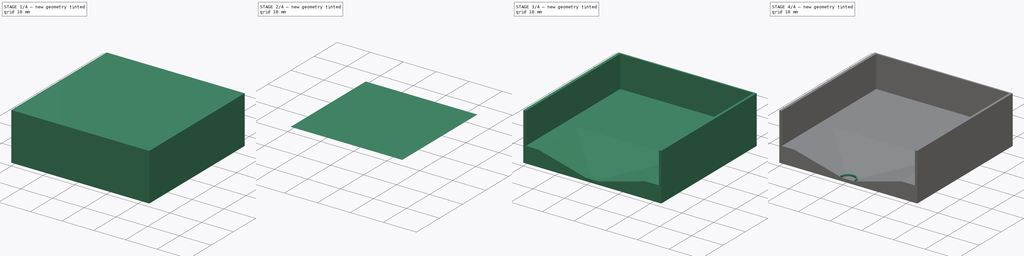
[diagram: build sequence overview — one tinted view per stage of 4, left to right]
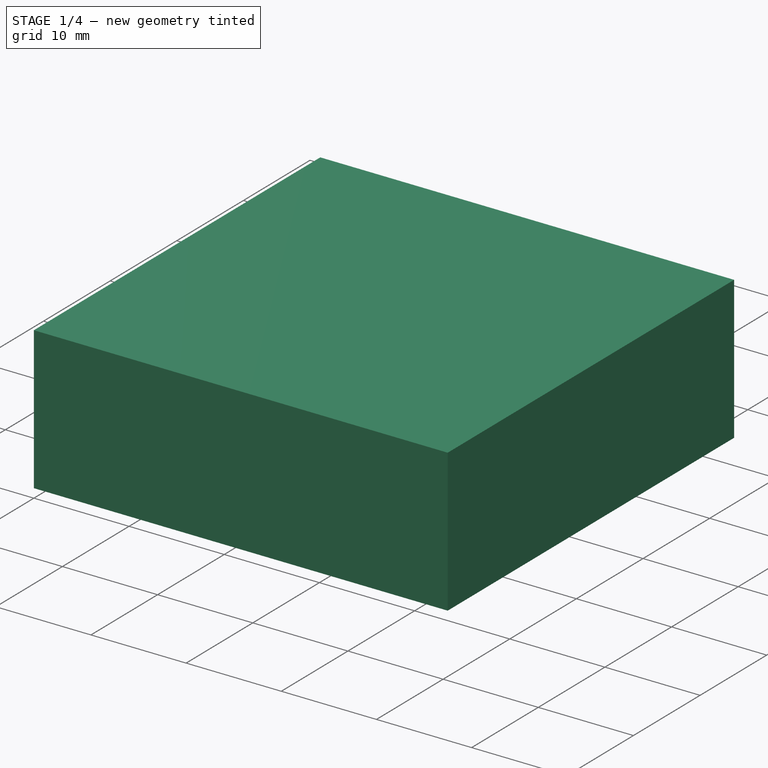
[diagram: stage 1 of 4 — iso view after this stage's code; geometry added in this stage tinted green]
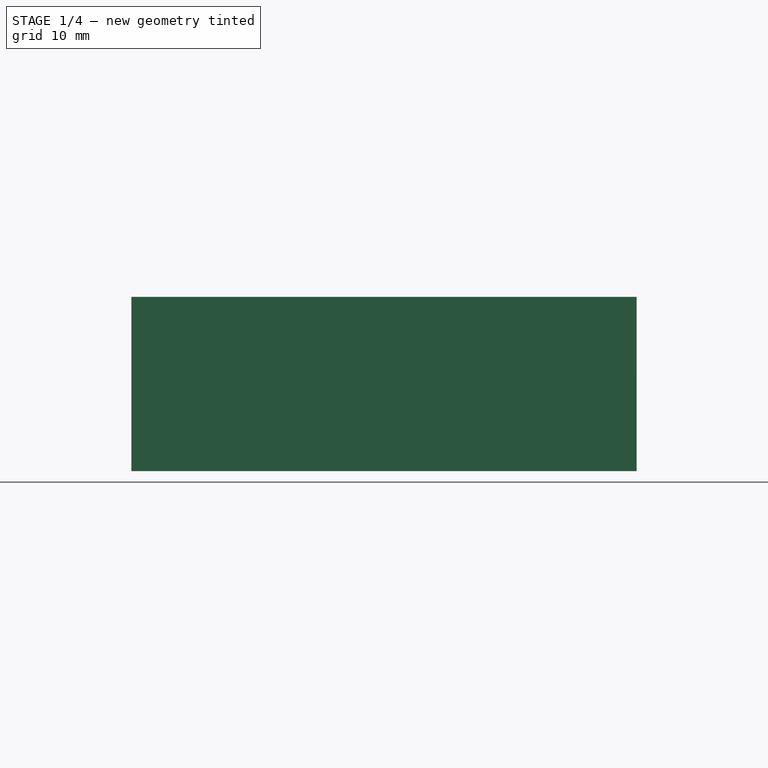
[diagram: stage 1 of 4 — front view after this stage's code; geometry added in this stage tinted green]
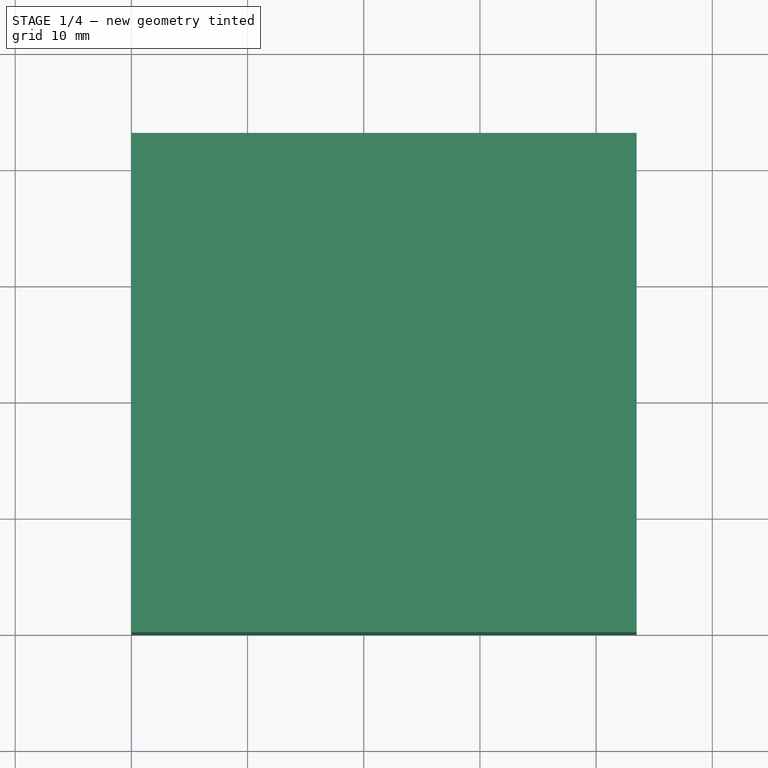
[diagram: stage 1 of 4 — top view after this stage's code; geometry added in this stage tinted green]
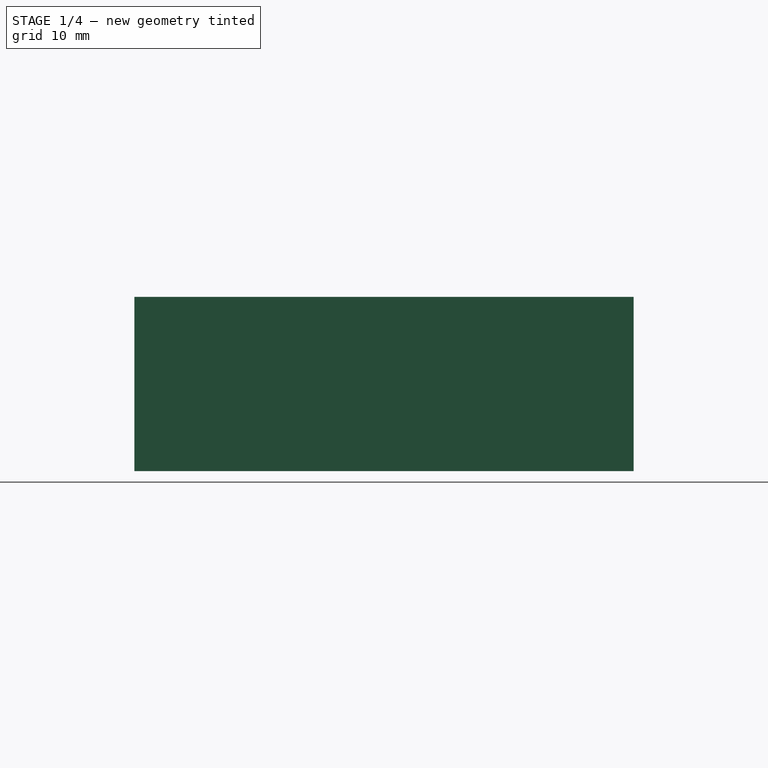
[diagram: stage 1 of 4 — right view after this stage's code; geometry added in this stage tinted green]
FCSTD DOCUMENT  (FreeCAD 0.19R24267 +148 (Git))
Label: Feeder training
License: All rights reserved
LicenseURL: http://en.wikipedia.org/wiki/All_rights_reserved
objects: Sketcher::SketchObject×5, Part::Extrusion×3, Part::FeaturePython×3, PartDesign::Body×2, PartDesign::FeatureBase×1, PartDesign::Pocket×1, PartDesign::Plane×1, Part::Face×1, App::DocumentObjectGroup×1, Part::MultiFuse×1
note: 19 computed .brp shape members not serialized (recipe doc carries the construction recipe); baked Part::Feature solids carry a one-line shape summary decoded from their .brp

FEATURE [Sketcher::SketchObject] Sketch
  FullyConstrained = false
  MapMode = 5
  Support = -> [XY_Plane]
  sketch-geometry (5):
    g0: LineSegment StartX=0 StartY=0 StartZ=0 EndX=43.4855 EndY=0 EndZ=0
    g1: LineSegment StartX=43.4855 StartY=0 StartZ=0 EndX=43.4855 EndY=42.9794 EndZ=0
    g2: LineSegment StartX=43.4855 StartY=42.9794 StartZ=0 EndX=0 EndY=42.9794 EndZ=0
    g3: LineSegment StartX=0 StartY=42.9794 StartZ=0 EndX=0 EndY=0 EndZ=0
    g4: GeomPoint X=21.4971 Y=0 Z=0
  constraints (10):
    c: Coincident(g0,g1)
    c: Coincident(g1,g2)
    c: Coincident(g2,g3)
    c: Coincident(g3,g0)
    c: Horizontal(g0)
    c: Horizontal(g2)
    c: Vertical(g1)
    c: Vertical(g3)
    c: Coincident(g0,g-1)
    c: Horizontal(g4,g0)
FEATURE [Part::Extrusion] Extrude
  Base = -> Sketch
  Dir = (0,0,1)
  DirMode = 2
  FaceMakerClass = Part::FaceMakerBullseye
  LengthFwd = 15
  LengthRev = 0
  Solid = true
  Symmetric = false
FEATURE [PartDesign::FeatureBase] BaseFeature
  BaseFeature = -> Extrude
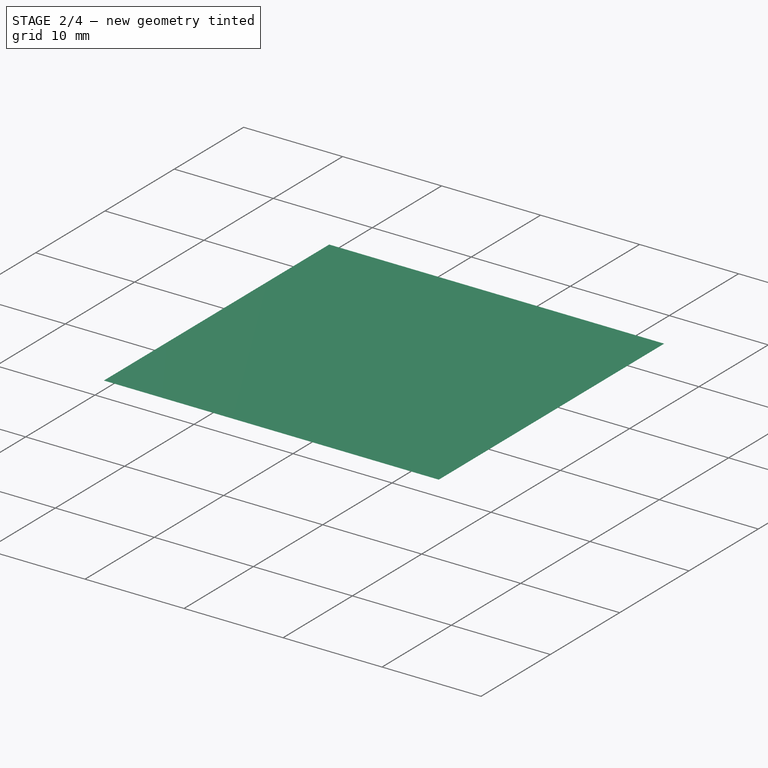
[diagram: stage 2 of 4 — iso view after this stage's code; geometry added in this stage tinted green]
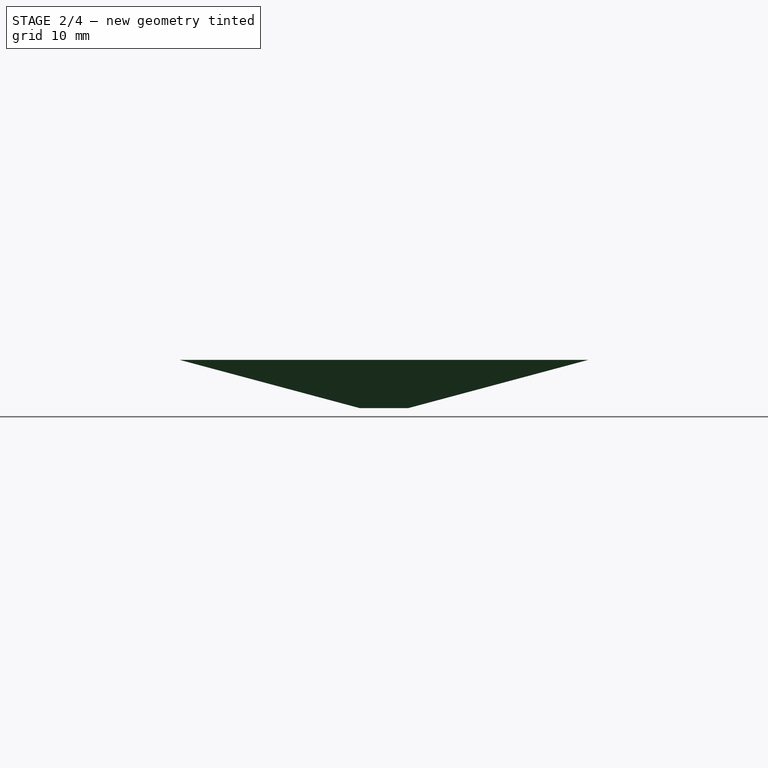
[diagram: stage 2 of 4 — front view after this stage's code; geometry added in this stage tinted green]
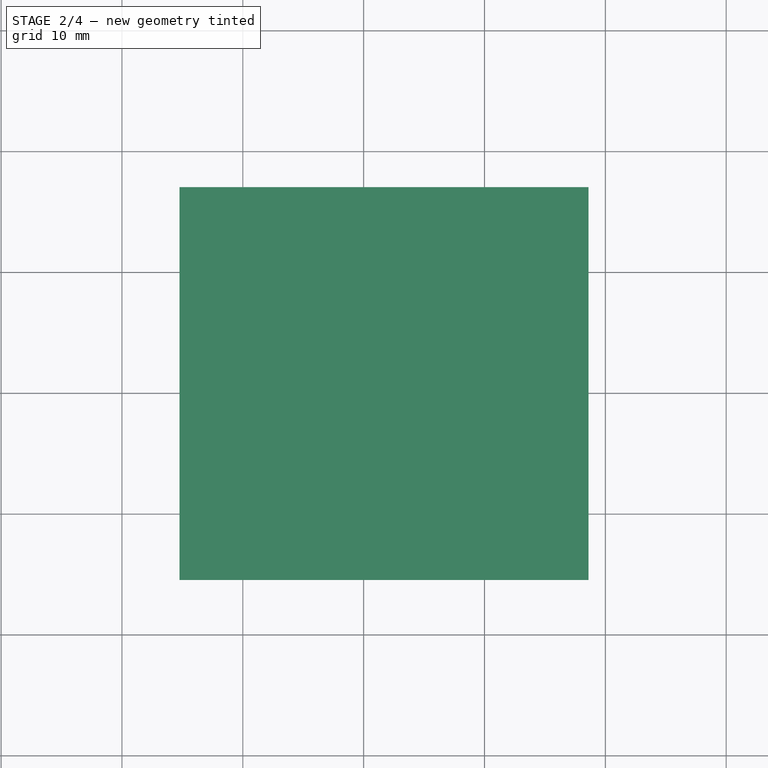
[diagram: stage 2 of 4 — top view after this stage's code; geometry added in this stage tinted green]
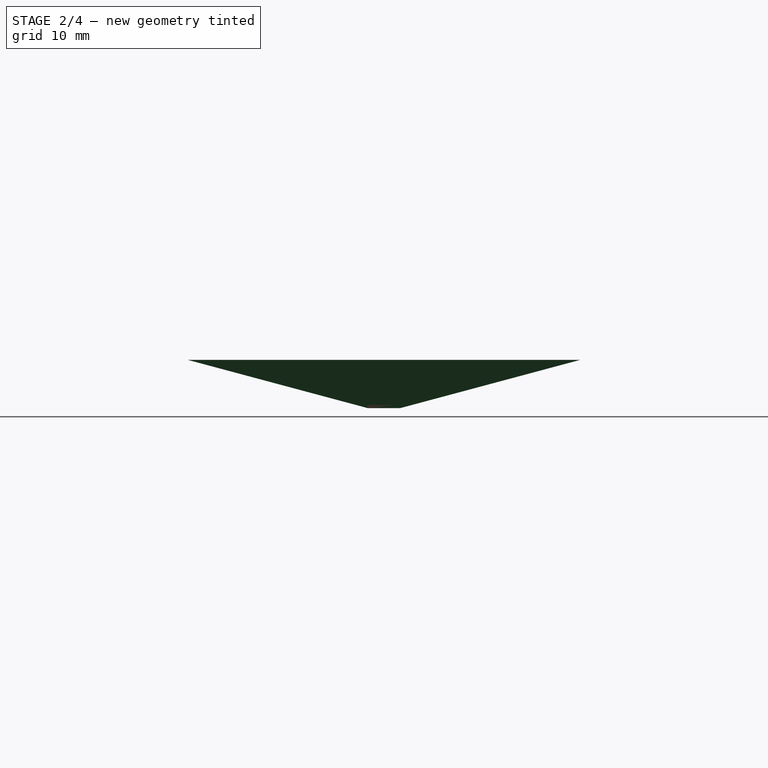
[diagram: stage 2 of 4 — right view after this stage's code; geometry added in this stage tinted green]
FEATURE [Sketcher::SketchObject] Sketch002
  FullyConstrained = false
  MapMode = 5
  Placement = pos=(0,0,15) rot=(0,0,1;0rad)
  Support = -> [BaseFeature]
  sketch-geometry (4):
    g0: LineSegment StartX=0.798798 StartY=-0.28933 StartZ=0 EndX=42.7362 EndY=-0.28933 EndZ=0
    g1: LineSegment StartX=42.7362 StartY=-0.28933 StartZ=0 EndX=42.7362 EndY=42.4645 EndZ=0
    g2: LineSegment StartX=42.7362 StartY=42.4645 StartZ=0 EndX=0.798798 EndY=42.4645 EndZ=0
    g3: LineSegment StartX=0.798798 StartY=42.4645 StartZ=0 EndX=0.798798 EndY=-0.28933 EndZ=0
  constraints (8):
    c: Coincident(g0,g1)
    c: Coincident(g1,g2)
    c: Coincident(g2,g3)
    c: Coincident(g3,g0)
    c: Horizontal(g0)
    c: Horizontal(g2)
    c: Vertical(g1)
    c: Vertical(g3)
FEATURE [PartDesign::Pocket] Pocket
  BaseFeature = -> BaseFeature
  Length = 10
  Length2 = 100
  Profile = -> Sketch002
  Type = 0
FEATURE [Sketcher::SketchObject] Sketch003
  FullyConstrained = false
  MapMode = 5
  Placement = pos=(0,0,5) rot=(0,0,1;0rad)
  Support = -> [Pocket]
  sketch-geometry (4):
    g0: LineSegment StartX=23.6735 StartY=2.05435 StartZ=0 EndX=19.6944 EndY=2.05435 EndZ=0
    g1: LineSegment StartX=19.6944 StartY=2.05435 StartZ=0 EndX=19.6944 EndY=-0.598367 EndZ=0
    g2: LineSegment StartX=19.6944 StartY=-0.598367 StartZ=0 EndX=23.6735 EndY=-0.598367 EndZ=0
    g3: LineSegment StartX=23.6735 StartY=-0.598367 StartZ=0 EndX=23.6735 EndY=2.05435 EndZ=0
  constraints (8):
    c: Coincident(g0,g1)
    c: Coincident(g1,g2)
    c: Coincident(g2,g3)
    c: Coincident(g3,g0)
    c: Horizontal(g0)
    c: Horizontal(g2)
    c: Vertical(g1)
    c: Vertical(g3)
FEATURE [Part::Extrusion] Extrude004
  Base = -> Sketch003
  Dir = (0,0,1)
  DirMode = 2
  FaceMakerClass = Part::FaceMakerBullseye
  LengthFwd = 4
  LengthRev = 0
  Solid = true
  Symmetric = false
  TaperAngle = 75
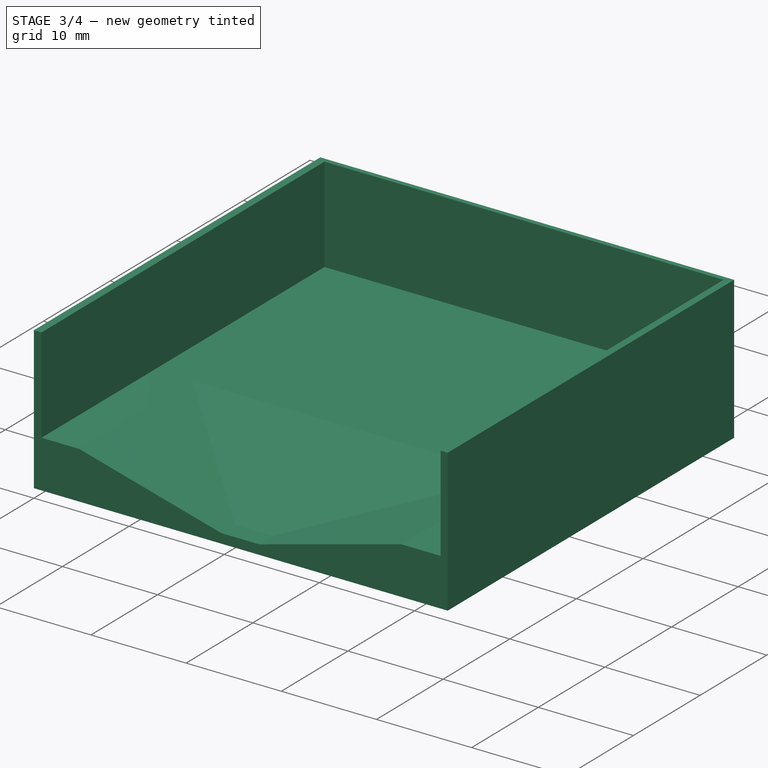
[diagram: stage 3 of 4 — iso view after this stage's code; geometry added in this stage tinted green]
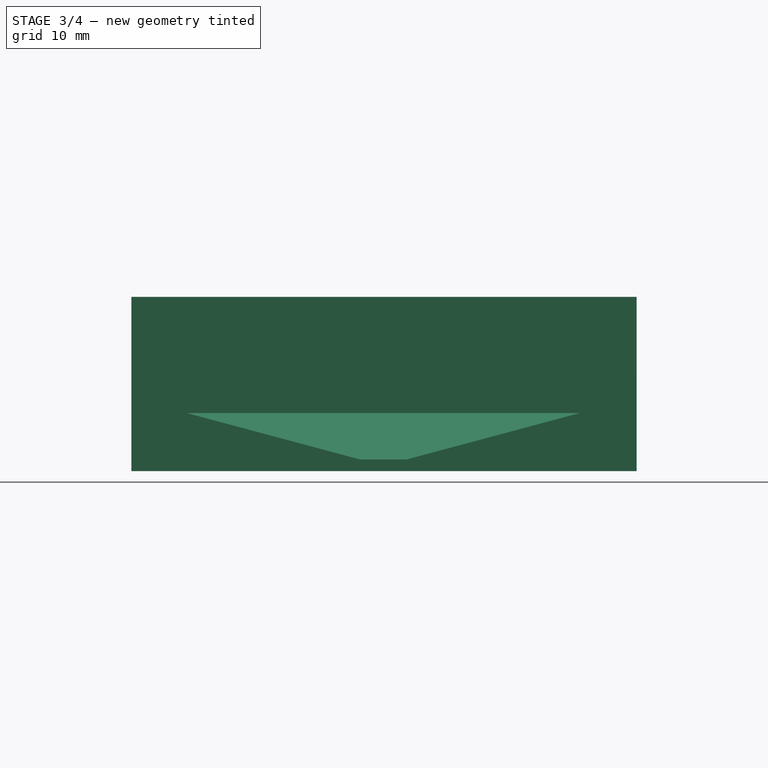
[diagram: stage 3 of 4 — front view after this stage's code; geometry added in this stage tinted green]
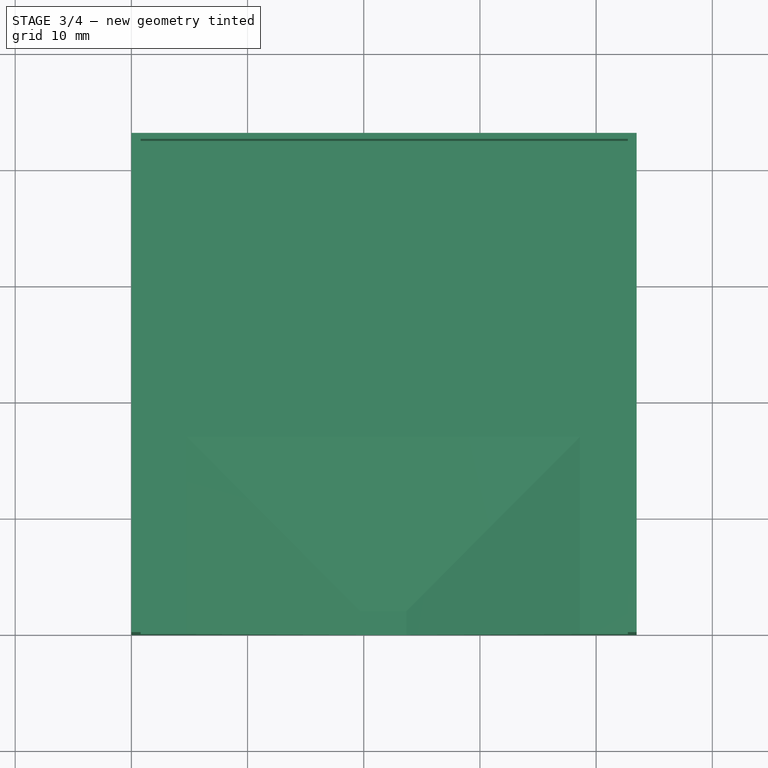
[diagram: stage 3 of 4 — top view after this stage's code; geometry added in this stage tinted green]
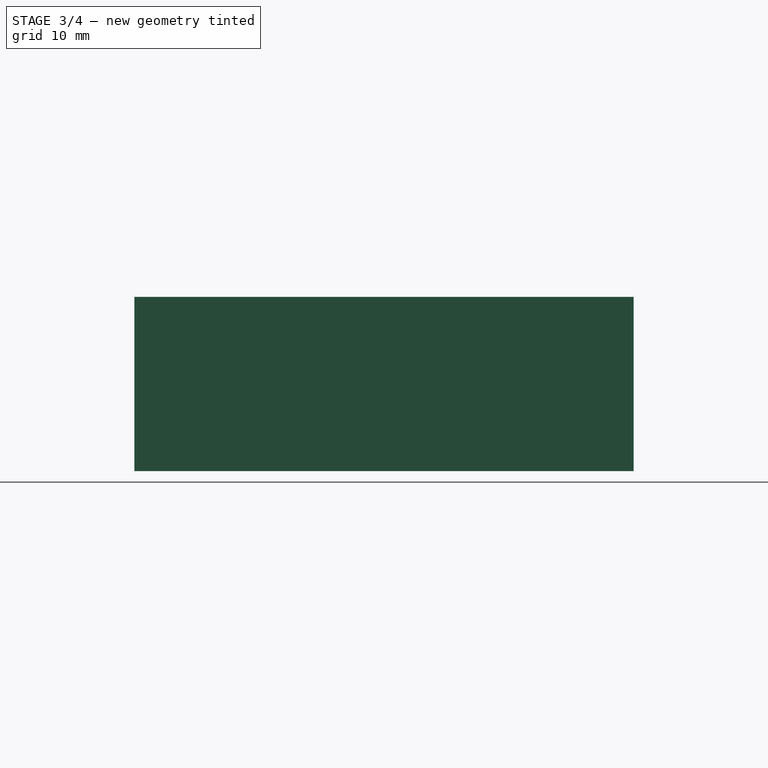
[diagram: stage 3 of 4 — right view after this stage's code; geometry added in this stage tinted green]
FEATURE [PartDesign::Body] Body
  Group = -> [Sketch]
  Origin = -> Origin
FEATURE [PartDesign::Plane] DatumPlane
  Length = 83.6032
  MapMode = 5
  Placement = pos=(0,0,0) rot=(1,0,0;1.5708rad)
  ResizeMode = 0
  Support = -> [Pocket]
  Width = 63.7669
FEATURE [Sketcher::SketchObject] Sketch004
  FullyConstrained = false
  MapMode = 5
  Placement = pos=(0,0,0) rot=(1,0,0;1.5708rad)
  Support = -> [DatumPlane]
  sketch-geometry (4):
    g0: LineSegment StartX=-7.50264 StartY=26.6201 StartZ=0 EndX=46.4564 EndY=26.6201 EndZ=0
    g1: LineSegment StartX=46.4564 StartY=26.6201 StartZ=0 EndX=46.4564 EndY=-13.1326 EndZ=0
    g2: LineSegment StartX=46.4564 StartY=-13.1326 StartZ=0 EndX=-7.50264 EndY=-13.1326 EndZ=0
    g3: LineSegment StartX=-7.50264 StartY=-13.1326 StartZ=0 EndX=-7.50264 EndY=26.6201 EndZ=0
  constraints (8):
    c: Coincident(g0,g1)
    c: Coincident(g1,g2)
    c: Coincident(g2,g3)
    c: Coincident(g3,g0)
    c: Horizontal(g0)
    c: Horizontal(g2)
    c: Vertical(g1)
    c: Vertical(g3)
FEATURE [PartDesign::Body] Body001
  BaseFeature = -> Extrude
  Group = -> [BaseFeature,Sketch001,Sketch002,Pocket,Sketch003,DatumPlane,Sketch004]
  Origin = -> Origin001
  Tip = -> Pocket
FEATURE [Part::Face] Face
  FaceMakerClass = Part::FaceMakerBullseye
  Sources = -> [Sketch004]
FEATURE [Part::FeaturePython] Slice  # WARN: FeaturePython — macro-defined, semantics opaque (R4)
  Base = -> Extrude004
  Mode = 1
  Tolerance = 0
  Tools = -> [Face]
FEATURE [Part::FeaturePython] Slice_child0  label="Slice.0"  # WARN: FeaturePython — macro-defined, semantics opaque (R4)
  Base = -> Slice
  FilterType = 1
  Invert = false
  OverrideMaxVal = 0
  Placement = pos=(0,0,-4) rot=(0,0,1;0rad)
  WindowFrom = 80
  WindowTo = 100
  items = 0
FEATURE [App::DocumentObjectGroup] GrExplode_Slice  label="Exploded Slice"
  Group = -> [Slice_child0]
FEATURE [Part::FeaturePython] XOR  # WARN: FeaturePython — macro-defined, semantics opaque (R4)
  Objects = -> [Body001,Slice_child0]
  Tolerance = 0
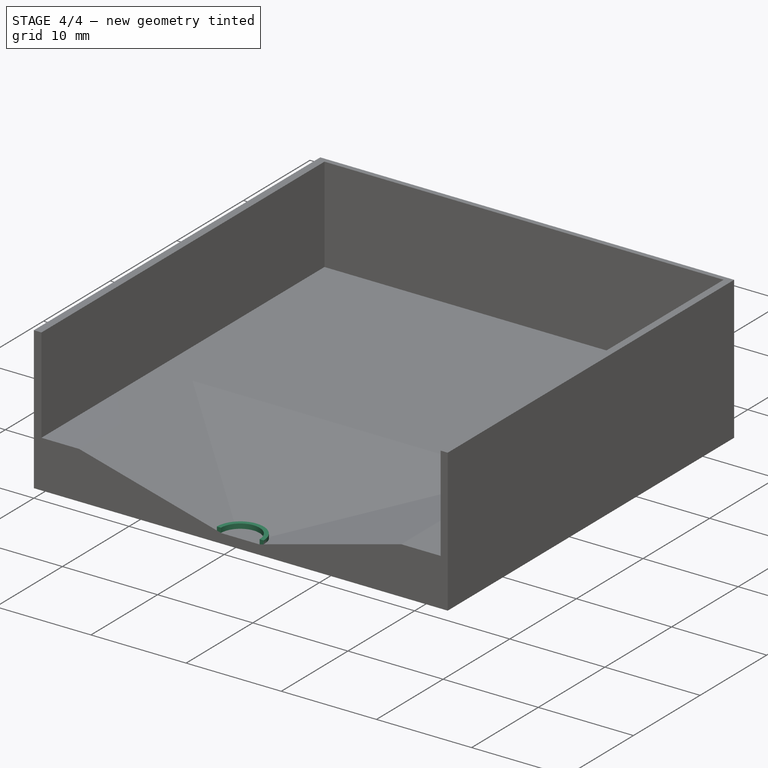
[diagram: stage 4 of 4 — iso view after this stage's code; geometry added in this stage tinted green]
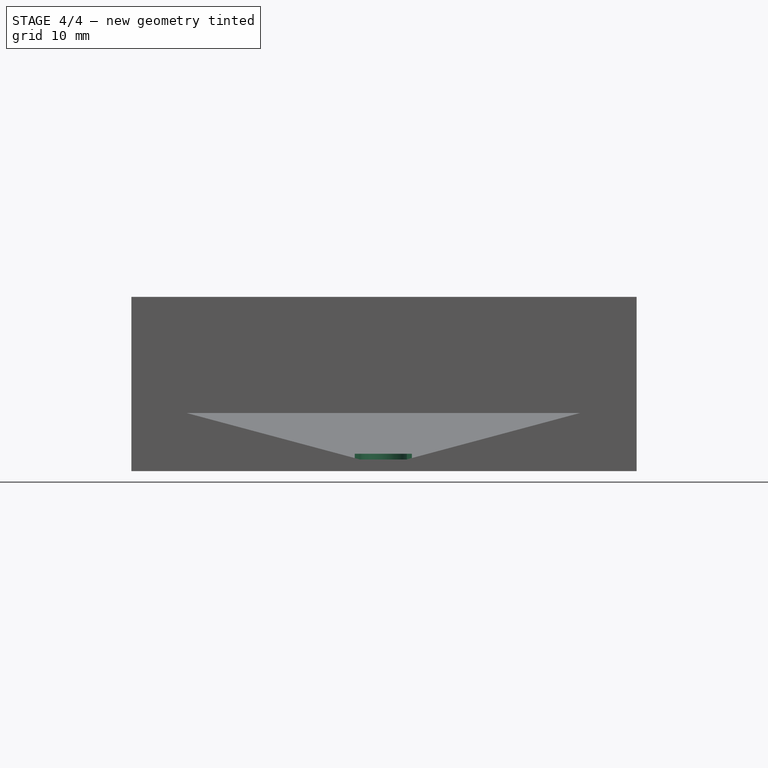
[diagram: stage 4 of 4 — front view after this stage's code; geometry added in this stage tinted green]
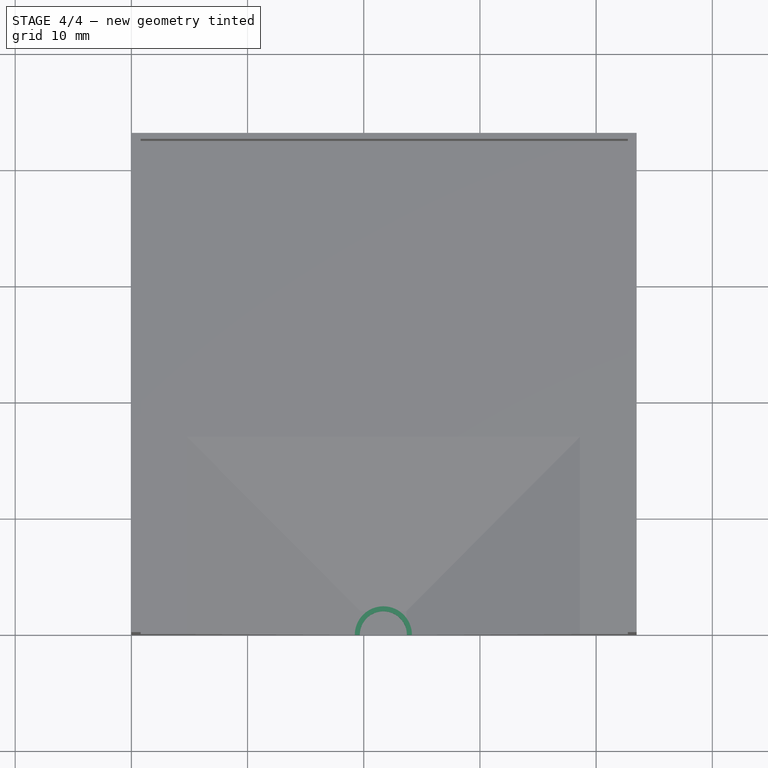
[diagram: stage 4 of 4 — top view after this stage's code; geometry added in this stage tinted green]
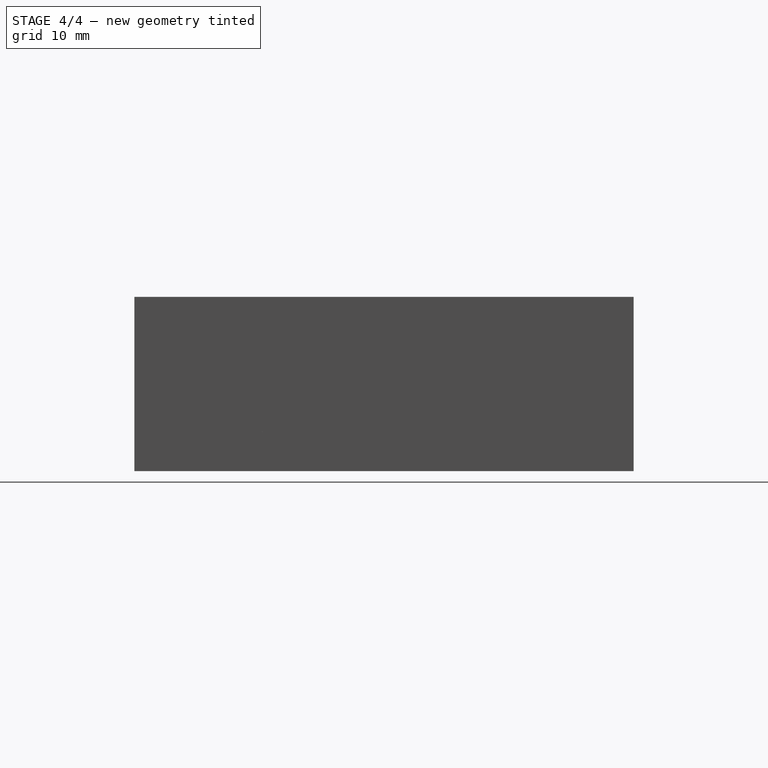
[diagram: stage 4 of 4 — right view after this stage's code; geometry added in this stage tinted green]
FEATURE [Sketcher::SketchObject] Sketch001
  FullyConstrained = false
  MapMode = 5
  Placement = pos=(0,0,15) rot=(0,0,1;0rad)
  Support = -> [BaseFeature]
  sketch-geometry (4):
    g0: ArcOfCircle CenterX=21.5473 CenterY=0 CenterZ=0 NormalX=0 NormalY=0 NormalZ=1 AngleXU=0 Radius=2.02818 StartAngle=0 EndAngle=3.14159
    g1: ArcOfCircle CenterX=21.5473 CenterY=0 CenterZ=0 NormalX=0 NormalY=0 NormalZ=1 AngleXU=0 Radius=2.45808 StartAngle=0 EndAngle=3.14159
    g2: LineSegment StartX=19.5192 StartY=2e-16 StartZ=0 EndX=19.0893 EndY=3e-16 EndZ=0
    g3: LineSegment StartX=23.5755 StartY=0 StartZ=0 EndX=24.0054 EndY=0 EndZ=0
  constraints (10):
    c: PointOnObject(g0,g-1)
    c: PointOnObject(g0,g-1)
    c: PointOnObject(g0,g-1)
    c: Coincident(g1,g0)
    c: PointOnObject(g1,g-1)
    c: PointOnObject(g1,g-1)
    c: Coincident(g2,g0)
    c: Coincident(g2,g1)
    c: Coincident(g3,g0)
    c: Coincident(g3,g1)
FEATURE [Part::Extrusion] Extrude001
  Base = -> Sketch001
  Dir = (0,0,1)
  DirMode = 2
  FaceMakerClass = Part::FaceMakerBullseye
  LengthFwd = 1
  LengthRev = 0
  Placement = pos=(0.14,0,-14.5) rot=(0,0,1;0rad)
  Solid = true
  Symmetric = false
FEATURE [Part::MultiFuse] Fusion
  Shapes = -> [Extrude001,XOR]
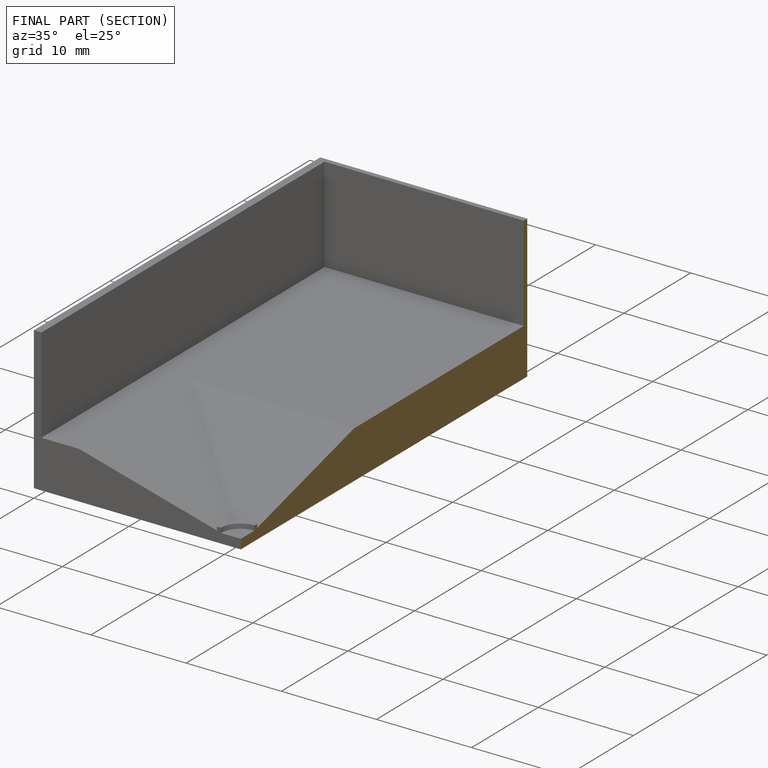
[diagram: finished part — half-section view (interior)]
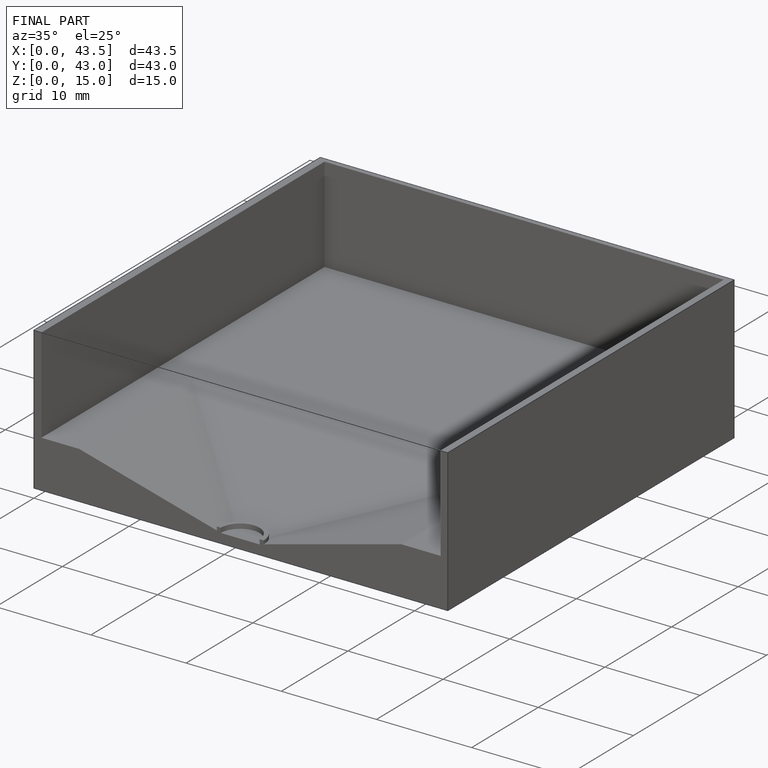
[diagram: finished part — iso view with bounding-box wireframe]
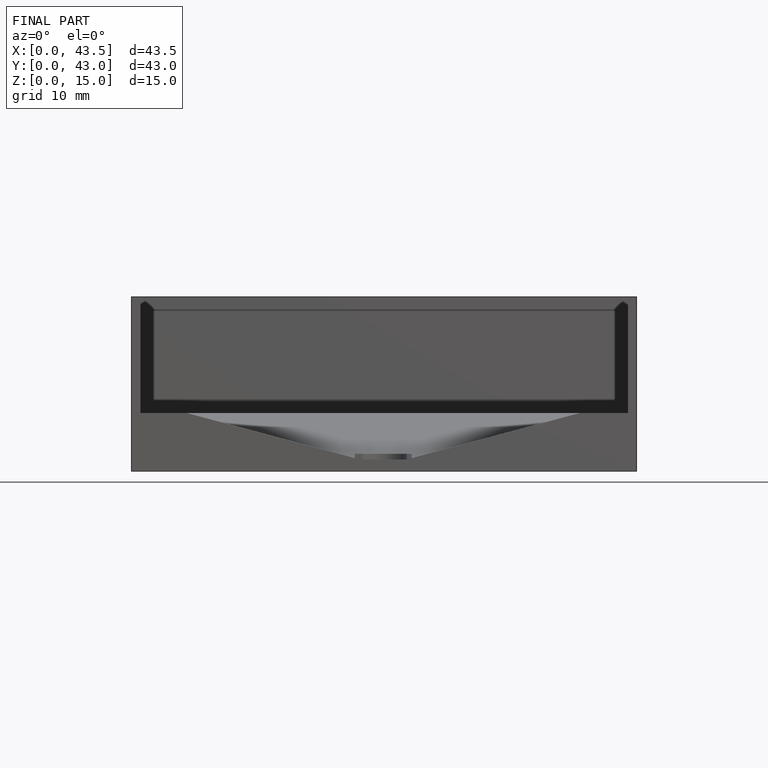
[diagram: finished part — front view with bounding-box wireframe]
